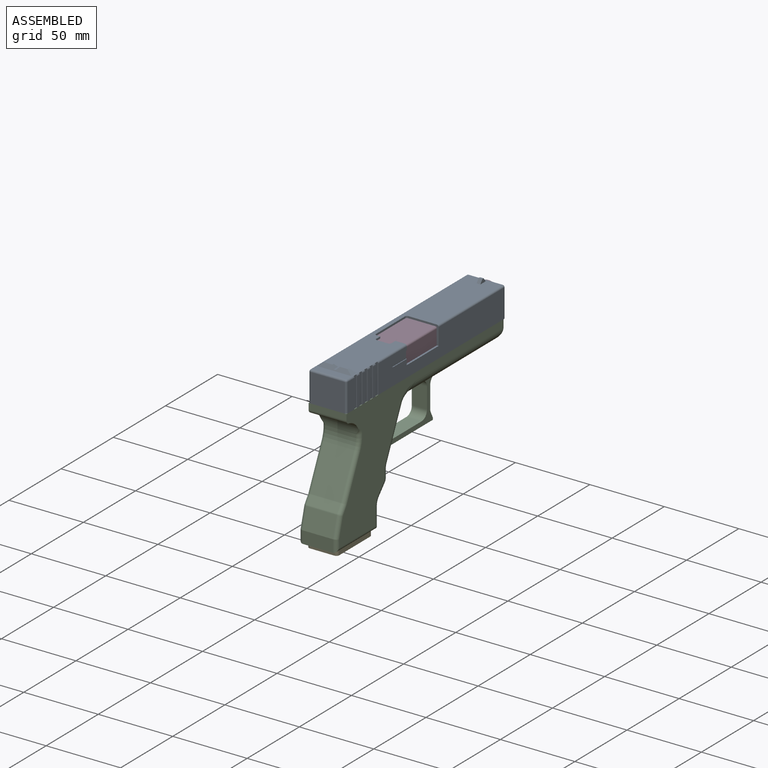
[diagram: assembled view]
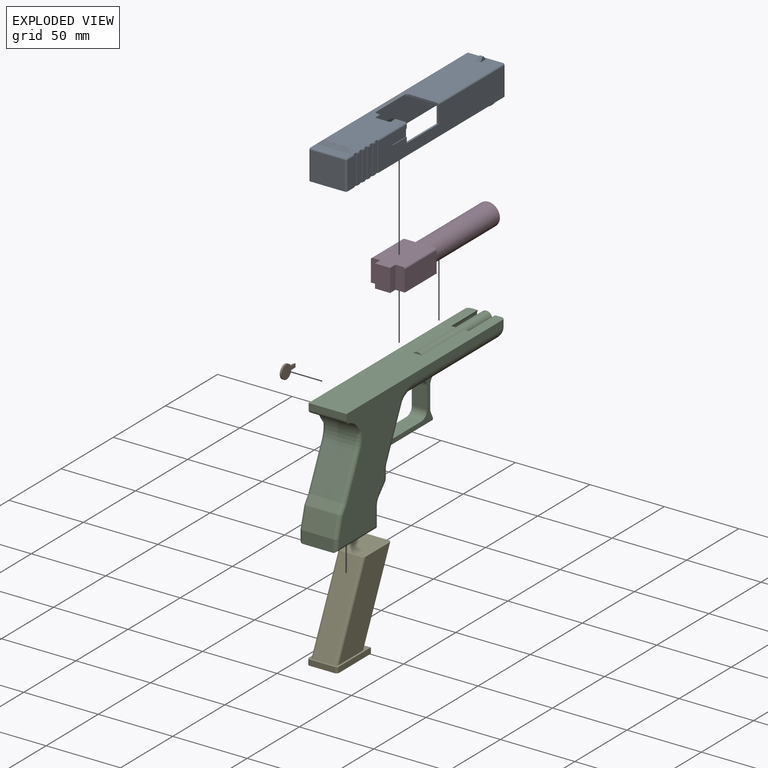
[diagram: exploded view]
GUIDED TOUR — MATED ASSEMBLY (Onshape document 2e7e0c76f9fff4b764868098, AutoMate assembly 2e7e0c76f9fff4b764868098_6b73f52bdf504f9c0991825f_519ae614bd4f93b9dc8b171b_default)

This assembly has 5 components, labeled P0..P4 below (a component is one placed occurrence of a part; the same part can appear more than once), held together by 5 mates. A mate is a constraint between two components; its type names the relative motion it leaves free:
  FASTENED — locks the two components together rigidly (no relative motion),
  PARALLEL — keeps the two listed directions parallel.
Axis/direction vectors are unit vectors and 'through' points are millimeter coordinates, both in the assembly's world frame.

MATES
  1. FASTENED "Fastened 4": P1 <-> P0, direction (1.000, 0.000, 0.000) through (-50.19, -78.09, 82.53) mm
  2. FASTENED "Fastened 1": P3 <-> P0, direction (0.000, 0.000, 1.000) through (-42.57, -32.92, 93.96) mm
  3. PARALLEL "Parallel 1": P1 <-> P0, direction (1.000, 0.000, 0.000) through (-50.19, -78.09, 82.53) mm
  4. FASTENED "Fastened 2": P0 <-> P2, direction (0.000, 0.000, -1.000) through (-37.49, -90.79, 74.91) mm
  5. FASTENED "Fastened 3": P2 <-> P4, direction (0.000, 0.000, -1.000) through (-37.49, -64.28, -6.37) mm

ASSEMBLY ORDER
  1. P2 — the base component [order verified]
  2. P4 [order verified]
  3. P3 [order verified]
  4. P0 [order verified]
  5. P1 [order verified]
Order-tag legend:
  [order verified] — this step's position reverses a verified removal order: the component was checked to insert without passing through the ones already placed.

Of the 5 components, 1 carries the full construction recipe — the FeatureScript program that regenerates the part's solid from scratch; the rest are supplied as boundary geometry only.
Each toured component is shown spotlighted twice — in the assembled view, then in the exploded view, where a leader line traces a displaced component back to its assembled socket (saturated green if recipe-attached, orange if geometry-only; every other component desaturated gray) — followed by its recipe or geometry summary and the mates that hold it.
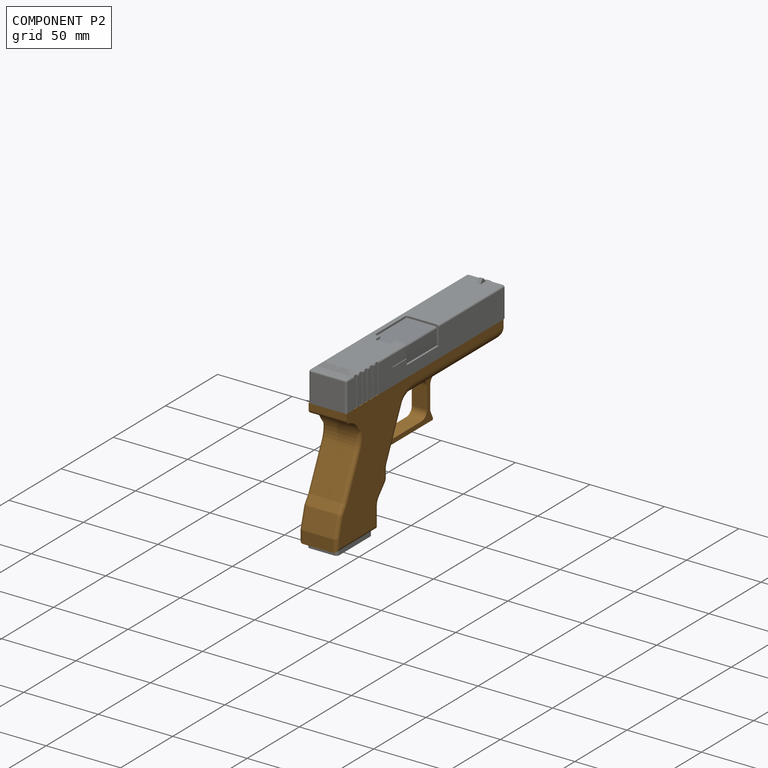
[diagram: component P2 — assembled]
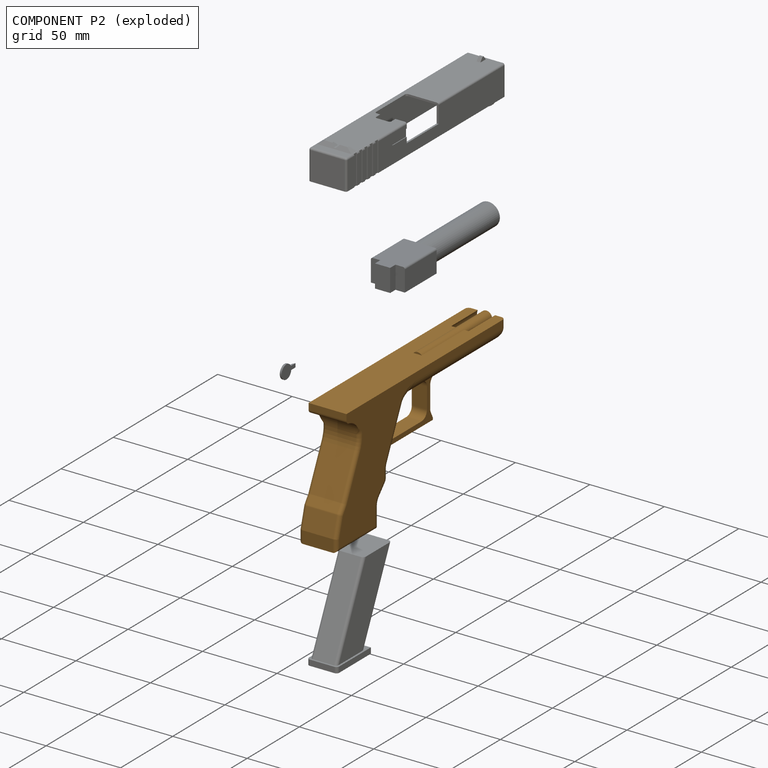
[diagram: component P2 — exploded]
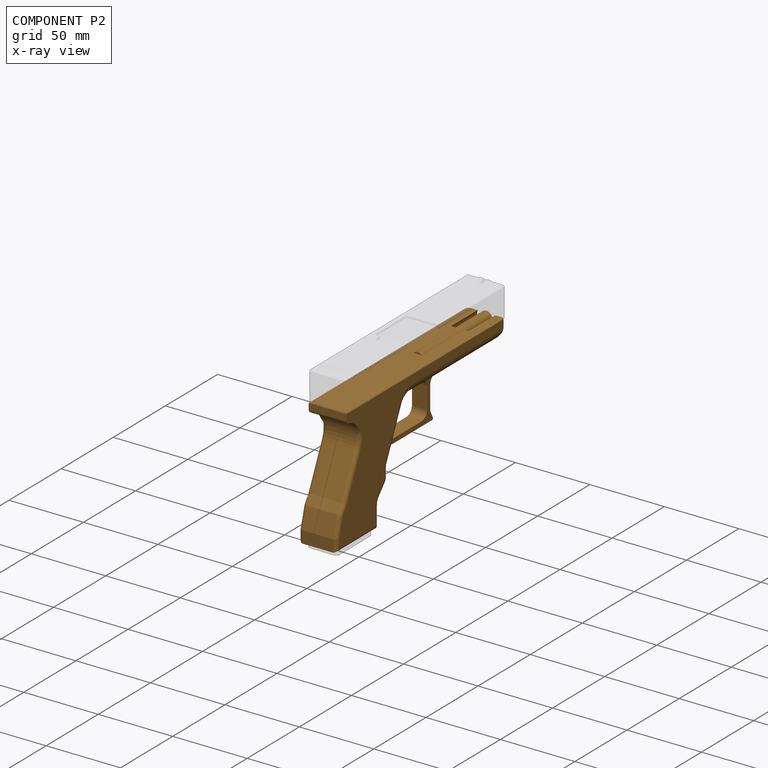
[diagram: component P2 — x-ray view]
COMPONENT P2 — geometry summary (no construction recipe available for this part):
  bounding box: 161.8 x 82.6 x 35.6 mm
  B-rep topology: 1 solid, 154 faces, 774 edges
  volume: 48212 mm^3 (10% of its bounding box)
  symmetry: mirror-symmetric across its x mid-plane
Held by: FASTENED mate "Fastened 2" to P0; FASTENED mate "Fastened 3" to P4.
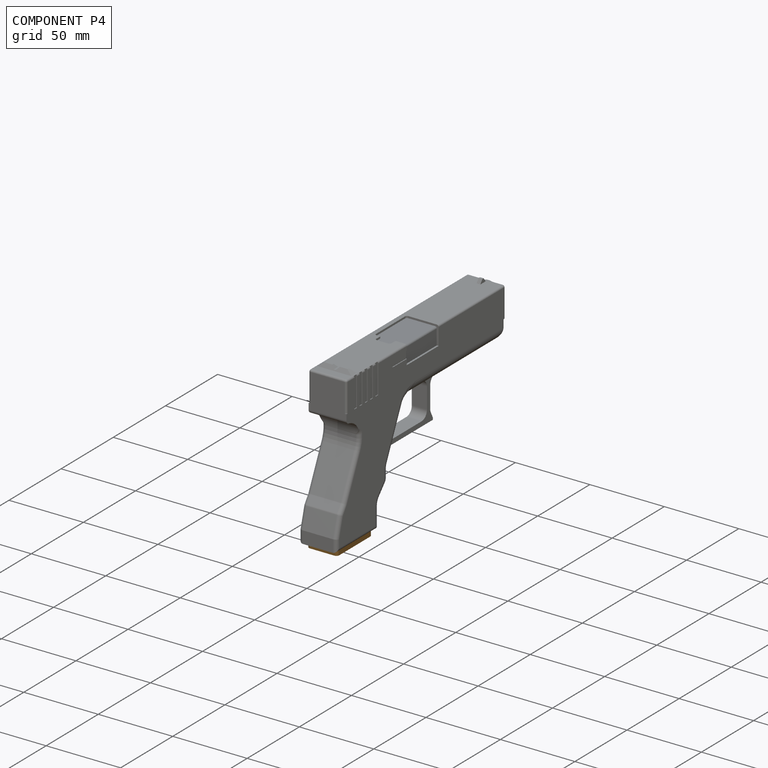
[diagram: component P4 — assembled]
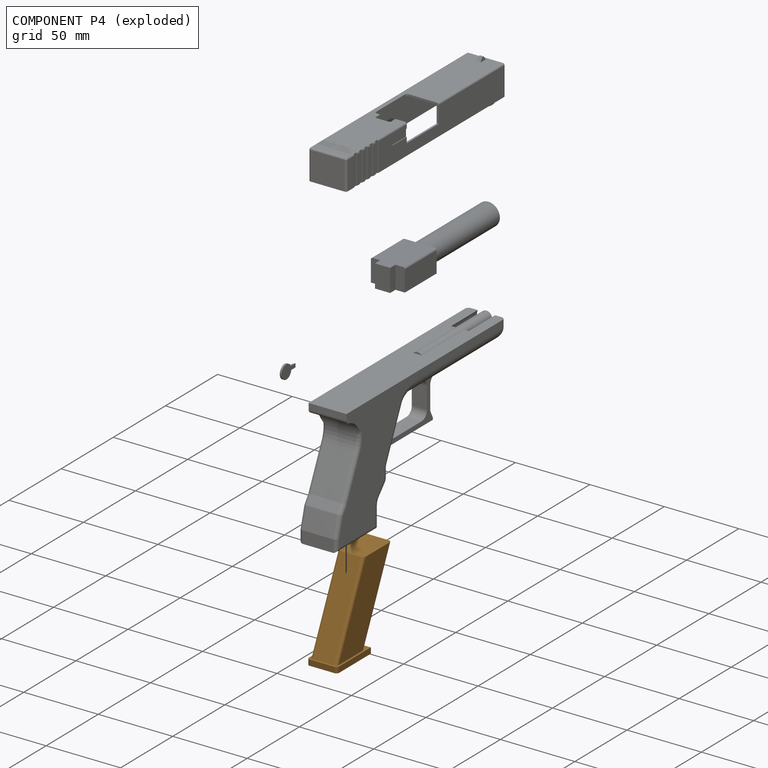
[diagram: component P4 — exploded]
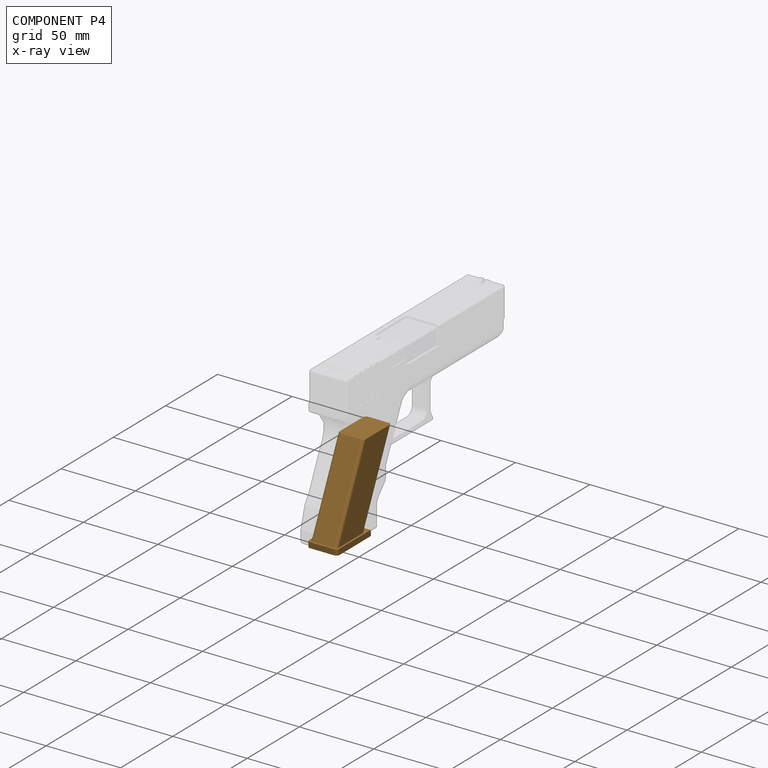
[diagram: component P4 — x-ray view]
COMPONENT P4 — geometry summary (no construction recipe available for this part):
  bounding box: 60.5 x 54.0 x 20.3 mm
  B-rep topology: 1 solid, 20 faces, 98 edges
  volume: 28917 mm^3 (44% of its bounding box)
  symmetry: mirror-symmetric across its x mid-plane
Held by: FASTENED mate "Fastened 3" to P2.
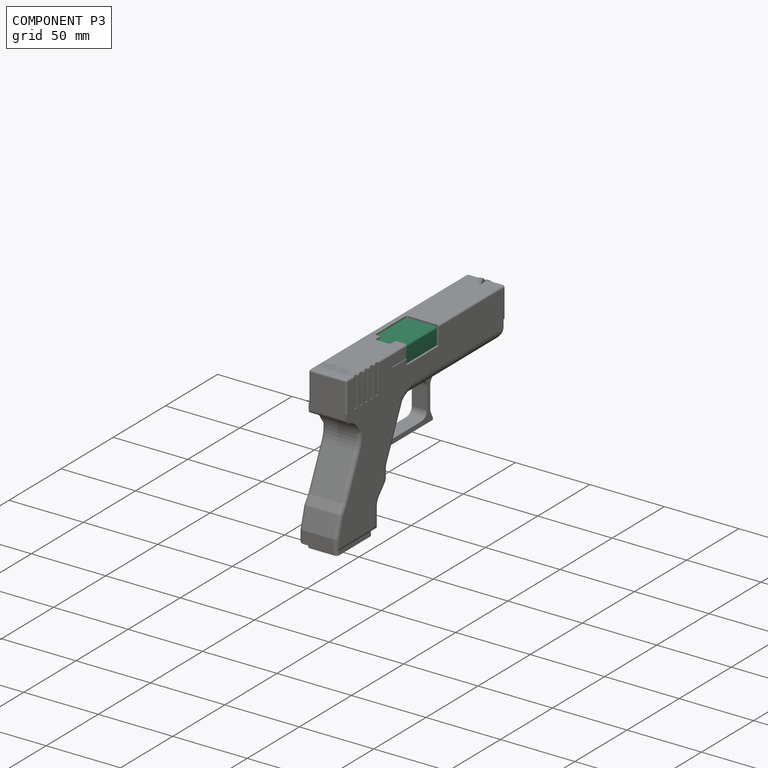
[diagram: component P3 — assembled]
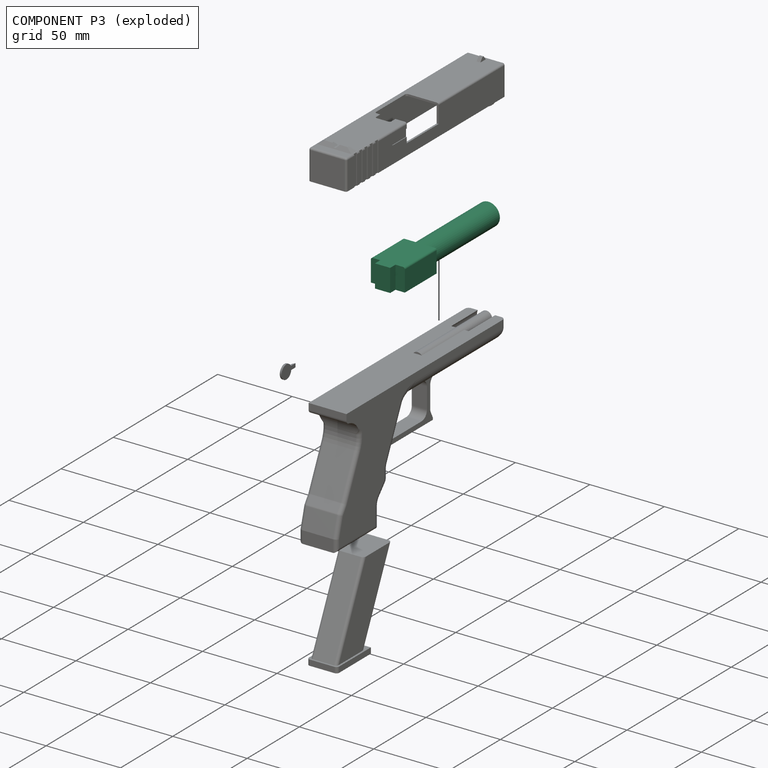
[diagram: component P3 — exploded]
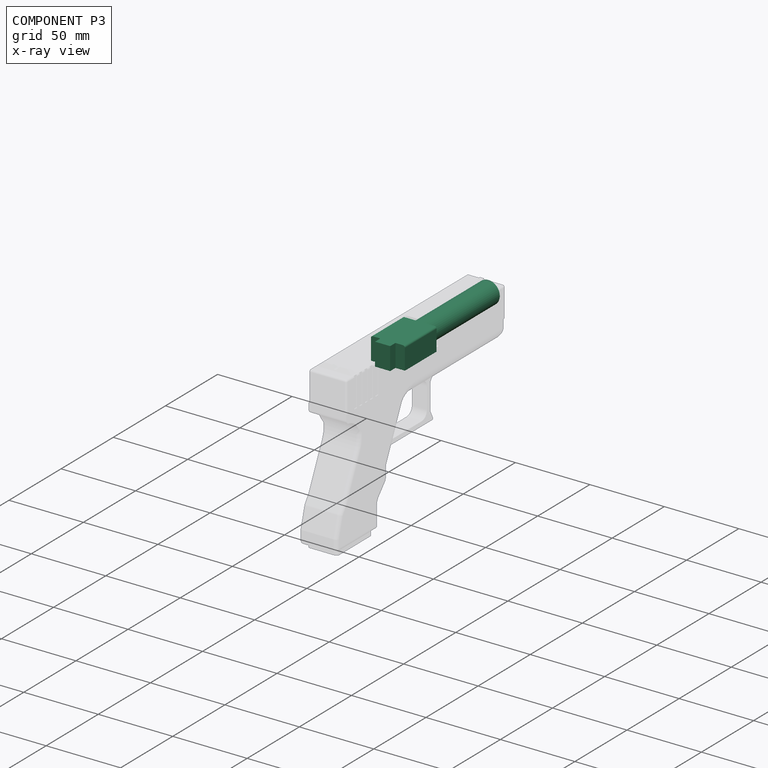
[diagram: component P3 — x-ray view]
COMPONENT P3 — recipe-attached (CADFS 00394986, mesh-verified: the recipe's output STEP matches this component's geometry to below the mesh-comparison resolution (tessellation chordal tolerance ~0.158 mm)).
Held by: FASTENED mate "Fastened 1" to P0.
Construction recipe (FeatureScript — the CAD program that rebuilds this solid; sketch coordinates are in the units given by the * unit suffixes, e.g. mm):

FeatureScript 1511;
import(path : "onshape/std/geometry.fs", version : "1511.0");
import(path : "onshape/std/common.fs", version : "1511.0");
const mm = millimeter;
const VERTEX = EntityType.VERTEX;
const EDGE = EntityType.EDGE;
const FACE = EntityType.FACE;
const BODY = EntityType.BODY;
function v(x, y){return vector(x, y);}
function OD(order){return orderDisambiguation(order);}
function OSD(set){return originalSetDisambiguation(set);}
function TD(topology){return topologyDisambiguation(topology);}
function TDD(query){return trueDependencyDisambiguation(query);}
function sQuery(a, b, c) {return sketchEntityQuery(a, b, c);}

annotation { "Feature Type Name" : "Feature", "Feature Type Description" : "" }
export const myFeature = defineFeature(function(context is Context, id is Id, definition is map)
    precondition{}
    {
        {
            var Q0;
            Q0=qCreatedBy(makeId("Right.planeOp"),FACE);
            var sketch = newSketch(context, id + "F0", { "sketchPlane" : qUnion([Q0])});
            skLineSegment(sketch, "E0.top", {"start": v(0, 12.7) * mm, "end": v(35.56, 12.7) * mm});
            skLineSegment(sketch, "E0.left", {"start": v(0, 0) * mm, "end": v(0, 12.7) * mm});
            skLineSegment(sketch, "E0.right", {"start": v(35.56, 0) * mm, "end": v(35.56, 12.7) * mm});
            skLineSegment(sketch, "E1.top", {"start": v(35.56, -2.54) * mm, "end": v(0, -2.54) * mm});
            skLineSegment(sketch, "E1.left", {"start": v(35.56, 0) * mm, "end": v(35.56, -2.54) * mm});
            skLineSegment(sketch, "E1.right", {"start": v(0, 0) * mm, "end": v(0, -2.54) * mm});
            skSolve(sketch);
        }
        {
            var Q0;
            Q0=makeQuery(id+"F0.imprint","IMPRINT",FACE,{"disambiguationData":[TD([[makeQuery(id+"F0.imprint","IMPRINT",EDGE,{"derivedFrom":sQuery(id+"F0.wireOp",EDGE,"E0.top")}),-1.0]])]});
            extrude(context, id + "F1", {"entities" : qUnion([Q0]), "endBound" : BoundingType.SYMMETRIC, "depth" : 22.86 * mm});
        }
        {
            var Q0;
            Q0=makeQuery(id+"F1.opExtrude","SWEPT_FACE",FACE,{"disambiguationData":[OSD([sQuery(id+"F0.wireOp",EDGE,"E0.top")])]});
            var sketch = newSketch(context, id + "F2", { "sketchPlane" : qUnion([Q0])});
            skLineSegment(sketch, "E2.bottom", {"start": v(-11.43, 0) * mm, "end": v(-5.08, 0) * mm});
            skLineSegment(sketch, "E2.top", {"start": v(-11.43, 5.08) * mm, "end": v(-5.08, 5.08) * mm});
            skLineSegment(sketch, "E2.left", {"start": v(-11.43, 0) * mm, "end": v(-11.43, 5.08) * mm});
            skLineSegment(sketch, "E2.right", {"start": v(-5.08, 0) * mm, "end": v(-5.08, 5.08) * mm});
            skLineSegment(sketch, "E3.bottom", {"start": v(11.43, 0) * mm, "end": v(5.08, 0) * mm});
            skLineSegment(sketch, "E3.top", {"start": v(11.43, 5.08) * mm, "end": v(5.08, 5.08) * mm});
            skLineSegment(sketch, "E3.left", {"start": v(11.43, 0) * mm, "end": v(11.43, 5.08) * mm});
            skLineSegment(sketch, "E3.right", {"start": v(5.08, 0) * mm, "end": v(5.08, 5.08) * mm});
            skSolve(sketch);
        }
        {
            var Q0;
            Q0 = qSketchRegion(id + "F2", true);
            extrude(context, id + "F3", {"entities" : qUnion([Q0]), "operationType" : NewBodyOperationType.REMOVE, "oppositeDirection" : true, "depth" : 25.4 * mm});
        }
        {
            var Q0;
            Q0=makeQuery(id+"F1.opExtrude","SWEPT_FACE",FACE,{"disambiguationData":[OSD([sQuery(id+"F0.wireOp",EDGE,"E0.right")])]});
            var sketch = newSketch(context, id + "F4", { "sketchPlane" : qUnion([Q0])});
            skCircle(sketch, "E4", {"center": v(0, 5.08) * mm, "radius": 7.62 * mm});
            skSolve(sketch);
        }
        {
            var Q0;
            Q0 = qSketchRegion(id + "F4", true);
            extrude(context, id + "F5", {"entities" : qUnion([Q0]), "operationType" : NewBodyOperationType.ADD, "depth" : 66.04 * mm});
        }
        {
            var Q0;
            Q0=makeQuery(id+"F5.opExtrude","CAP_FACE",FACE,{"disambiguationData":[OSD([sQuery(id+"F4.wireOp",EDGE,"E4")])],"isStart":false});
            var sketch = newSketch(context, id + "F6", { "sketchPlane" : qUnion([Q0])});
            skCircle(sketch, "E5", {"center": v(0, 5.08) * mm, "radius": 5.08 * mm});
            skSolve(sketch);
        }
        {
            var Q0;
            Q0=makeQuery(id+"F6.imprint","IMPRINT",FACE,{"disambiguationData":[TD([[makeQuery(id+"F6.imprint","IMPRINT",EDGE,{"derivedFrom":sQuery(id+"F6.wireOp",EDGE,"E5")}),1.0]])]});
            extrude(context, id + "F7", {"entities" : qUnion([Q0]), "operationType" : NewBodyOperationType.REMOVE, "oppositeDirection" : true, "depth" : 63.5 * mm});
        }
        {
            var Q0;
            Q0=makeQuery(id+"F1.opExtrude","CAP_EDGE",EDGE,{"disambiguationData":[OSD([sQuery(id+"F0.wireOp",EDGE,"E0.top")])],"isStart":true});
            var Q1;
            Q1=makeQuery(id+"F1.opExtrude","CAP_EDGE",EDGE,{"disambiguationData":[OSD([sQuery(id+"F0.wireOp",EDGE,"E0.top")])],"isStart":false});
            fillet(context, id + "F8", {"entities" : qUnion([Q0, Q1]), "radius" : 1.27 * mm, "tangentPropagation" : true, "allowEdgeOverflow" : false});
        }
    });
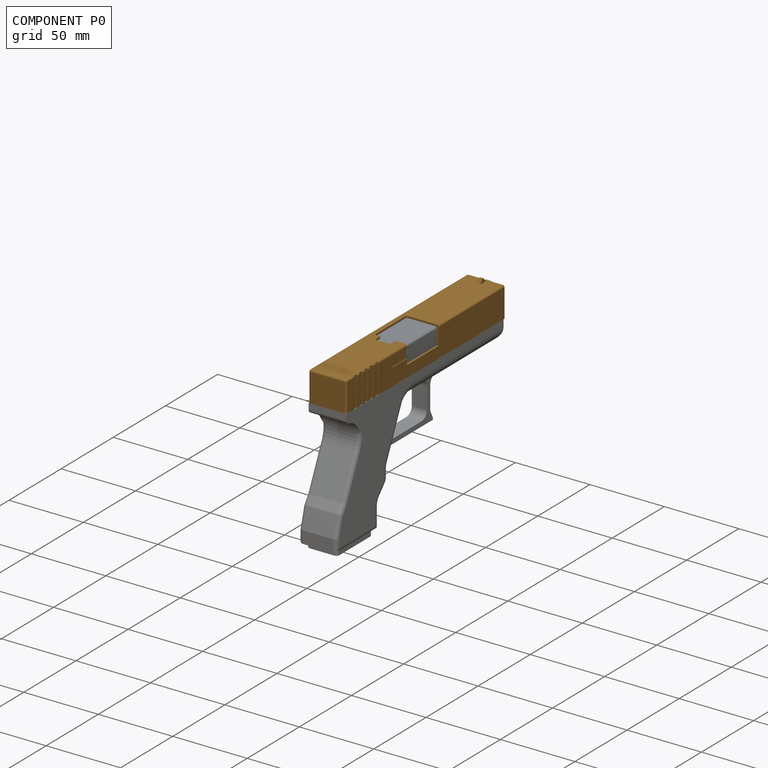
[diagram: component P0 — assembled]
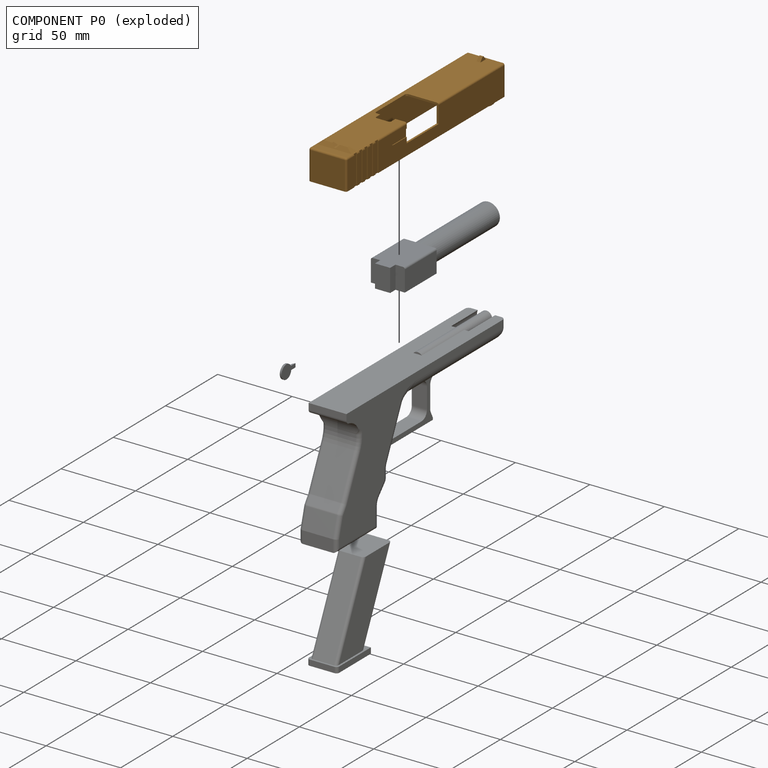
[diagram: component P0 — exploded]
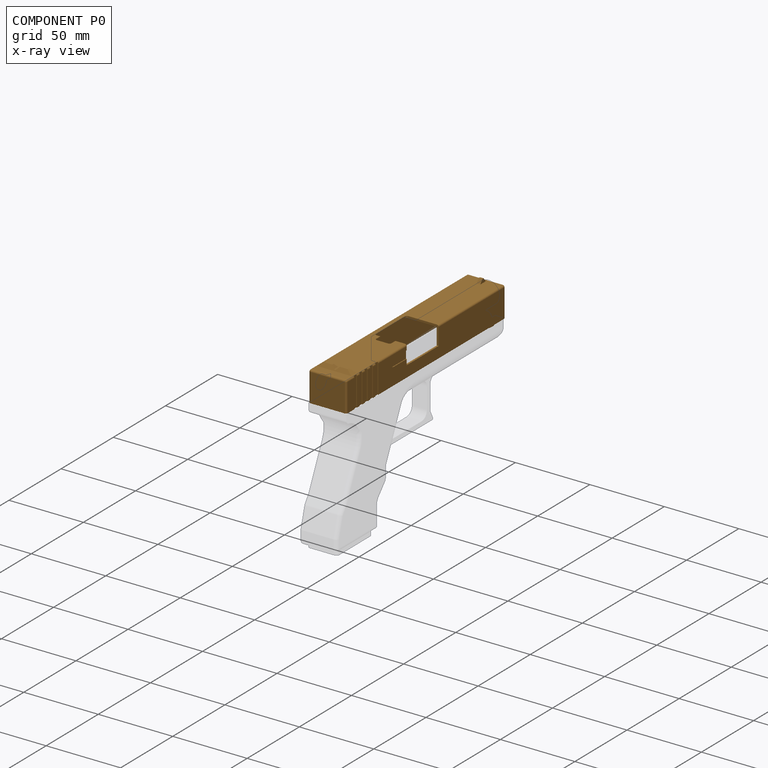
[diagram: component P0 — x-ray view]
COMPONENT P0 — geometry summary (no construction recipe available for this part):
  bounding box: 152.4 x 31.8 x 25.4 mm
  B-rep topology: 1 solid, 102 faces, 578 edges
  volume: 11623 mm^3 (9% of its bounding box)
Held by: FASTENED mate "Fastened 4" to P1; FASTENED mate "Fastened 1" to P3; PARALLEL mate "Parallel 1" to P1; FASTENED mate "Fastened 2" to P2.
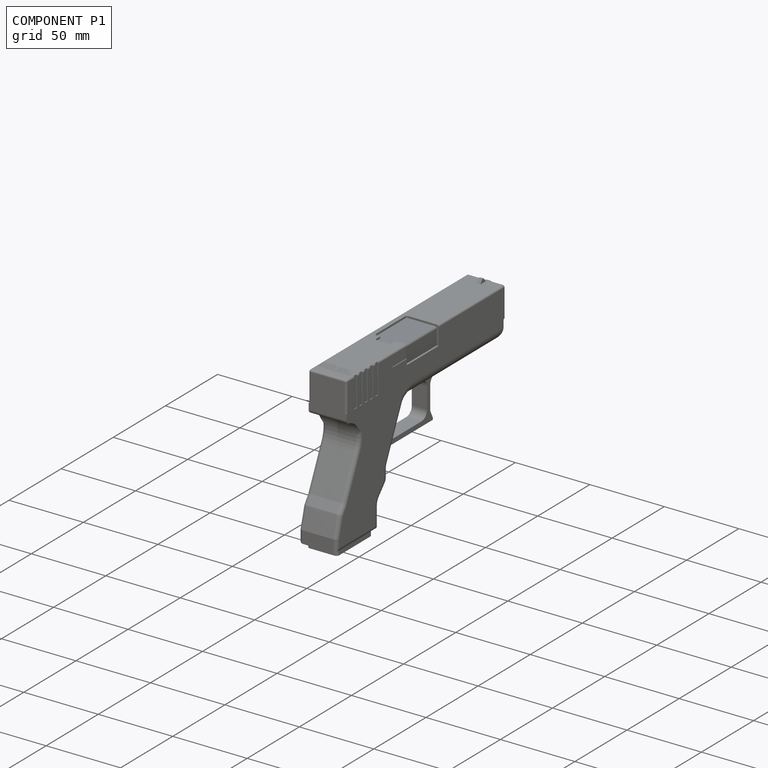
[diagram: component P1 — assembled]
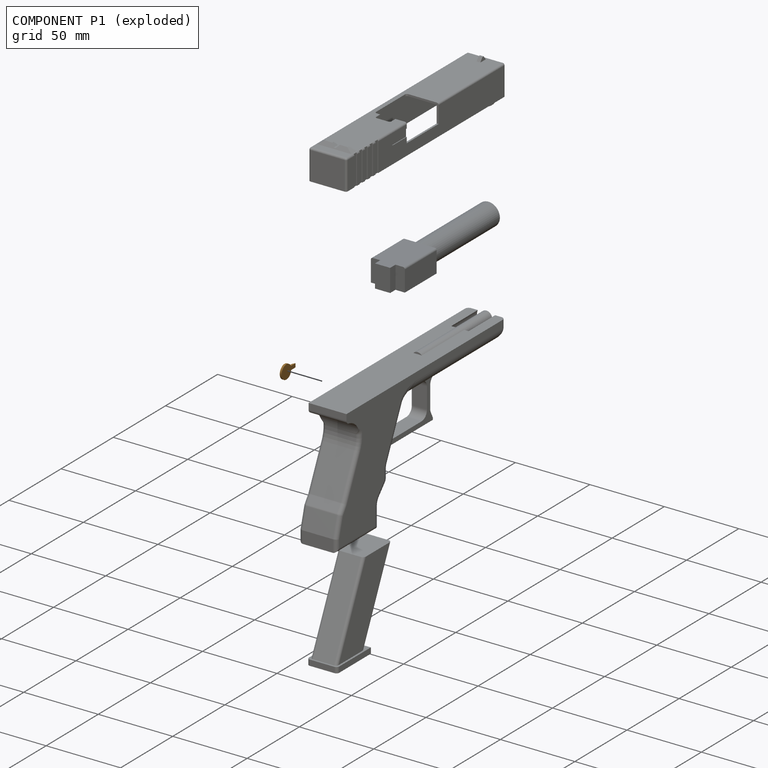
[diagram: component P1 — exploded]
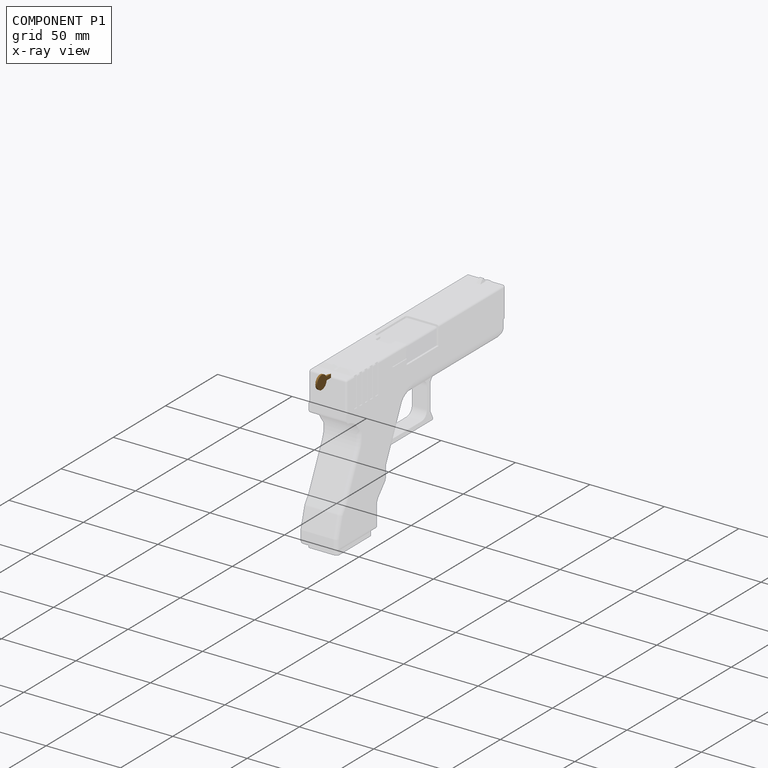
[diagram: component P1 — x-ray view]
COMPONENT P1 — geometry summary (no construction recipe available for this part):
  bounding box: 14.3 x 9.3 x 1.9 mm
  B-rep topology: 1 solid, 11 faces, 50 edges
  volume: 107 mm^3 (42% of its bounding box)
Held by: FASTENED mate "Fastened 4" to P0; PARALLEL mate "Parallel 1" to P0.
PROVENANCE & LICENSES
Assembly (occurrences, transforms, mates, per-part STEP geometry): AutoMate dataset, Zenodo record 7776208, CC0.
Construction recipes: CADFS (HuggingFace VladPyatov/CADFS, CC-BY-4.0, layered over the ABC dataset), FeatureScript reconstruction programs keyed by ABC model id.
Join: ABC meta listings map ABC model id -> Onshape documentId; within a shared document, parts are matched by geometric signature (bounding-box dims + volume at 0.1% relative tolerance, exact B-rep face/solid counts).
Verification: 1 of this assembly's 5 components carries a recipe attachment, and every attachment is mesh-verified: the CADFS STEP and the AutoMate member STEP were compared as meshes in their shared local frame (symmetric sampled-point-to-mesh distance); worst across the 1 attachment: below the mesh-comparison resolution (tessellation chordal tolerance ~0.158 mm) on a 105 mm part.
Renders: orthographic iso camera (az 35 / el 25); the floor grid conveys scale (grid pitch printed in each image; no ruler). In the exploded view each component is displaced by its stored offset vector: the offsets alone carry the explosion direction (mate normal/axis signs are not orientation cues and do not encode it), and separation distances are assigned per mate-chain, not proportionally to assembly-order depth.
